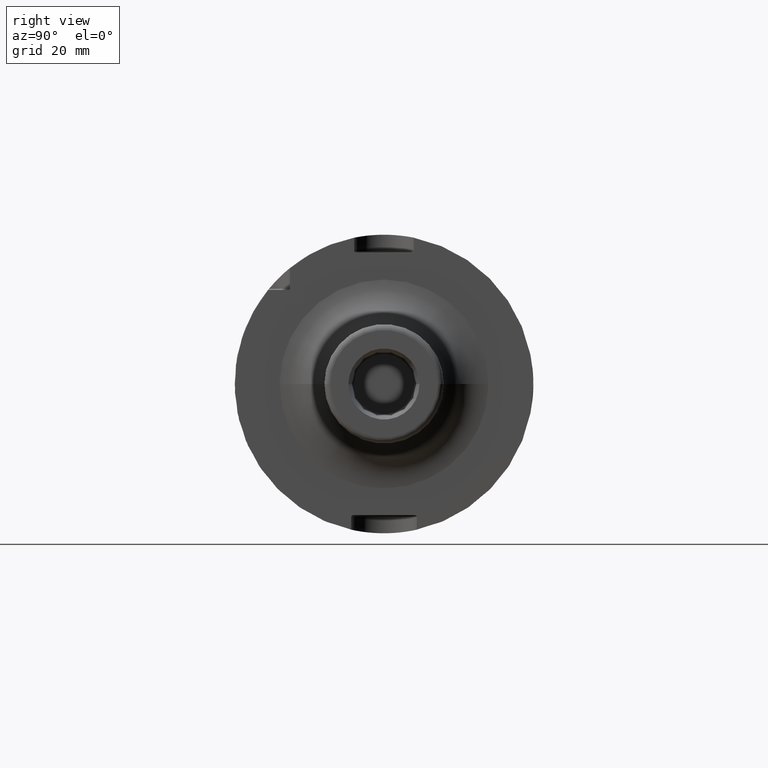
[diagram: clean part render]
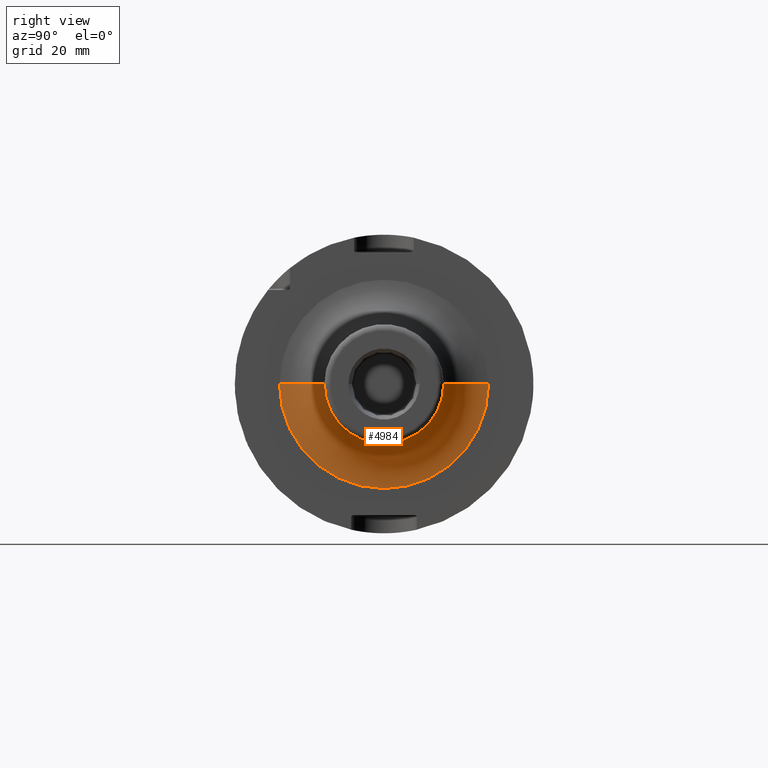
[diagram: same view with one face highlighted and labeled with its STEP entity id]
A machine part, right view. The second image highlights one B-rep face of the part: STEP entity #4984.
In plain terms, the highlighted toroidal blend (fillet) surface has major radius 35 mm and minor (blend) radius 15 mm.
Its self-contained STEP definition (entity closure, byte-faithful):
#1091=CARTESIAN_POINT('',(2.9E1,0.E0,0.E0));
#1092=DIRECTION('',(1.E0,0.E0,0.E0));
#1093=DIRECTION('',(0.E0,-1.E0,0.E0));
#1094=AXIS2_PLACEMENT_3D('',#1091,#1092,#1093);
#1810=CARTESIAN_POINT('',(4.4E1,-3.5E1,7.877865026984E-13));
#1811=DIRECTION('',(0.E0,-2.250803710080E-14,-1.E0));
#1812=DIRECTION('',(-1.E0,0.E0,0.E0));
#1813=AXIS2_PLACEMENT_3D('',#1810,#1811,#1812);
#1815=CARTESIAN_POINT('',(4.4E1,3.5E1,-7.924494394018E-13));
#1816=DIRECTION('',(0.E0,2.264117712758E-14,1.E0));
#1817=DIRECTION('',(-1.E0,0.E0,0.E0));
#1818=AXIS2_PLACEMENT_3D('',#1815,#1816,#1817);
#1849=CARTESIAN_POINT('',(4.4E1,0.E0,0.E0));
#1850=DIRECTION('',(1.E0,0.E0,0.E0));
#1851=DIRECTION('',(0.E0,-1.E0,0.E0));
#1852=AXIS2_PLACEMENT_3D('',#1849,#1850,#1851);
#3125=CARTESIAN_POINT('',(2.9E1,-3.5E1,0.E0));
#3126=CARTESIAN_POINT('',(2.9E1,3.5E1,0.E0));
#3127=VERTEX_POINT('',#3125);
#3128=VERTEX_POINT('',#3126);
#3129=CARTESIAN_POINT('',(4.4E1,-2.E1,0.E0));
#3130=CARTESIAN_POINT('',(4.4E1,2.E1,0.E0));
#3131=VERTEX_POINT('',#3129);
#3132=VERTEX_POINT('',#3130);
#4970=CARTESIAN_POINT('',(4.4E1,0.E0,0.E0));
#4971=DIRECTION('',(1.E0,0.E0,0.E0));
#4972=DIRECTION('',(0.E0,-9.999926110723E-1,3.844190531823E-3));
#4973=AXIS2_PLACEMENT_3D('',#4970,#4971,#4972);
#4974=TOROIDAL_SURFACE('',#4973,3.5E1,1.5E1);
#4975=ORIENTED_EDGE('',*,*,#4250,.F.);
#4977=ORIENTED_EDGE('',*,*,#4976,.T.);
#4979=ORIENTED_EDGE('',*,*,#4978,.T.);
#4981=ORIENTED_EDGE('',*,*,#4980,.F.);
#4982=EDGE_LOOP('',(#4975,#4977,#4979,#4981));
#4983=FACE_OUTER_BOUND('',#4982,.F.);
#4984=ADVANCED_FACE('',(#4983),#4974,.F.);
#1095=CIRCLE('',#1094,3.5E1);
#1814=CIRCLE('',#1813,1.5E1);
#1819=CIRCLE('',#1818,1.5E1);
#1853=CIRCLE('',#1852,2.E1);
#4250=EDGE_CURVE('',#3127,#3128,#1095,.T.);
#4976=EDGE_CURVE('',#3127,#3131,#1814,.T.);
#4978=EDGE_CURVE('',#3131,#3132,#1853,.T.);
#4980=EDGE_CURVE('',#3128,#3132,#1819,.T.);